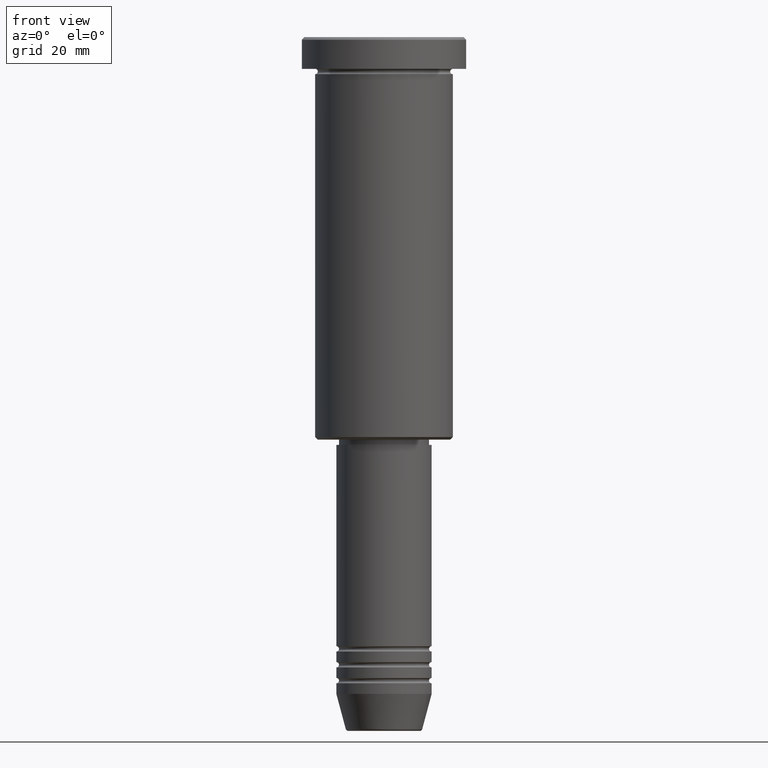
[diagram: clean part render]
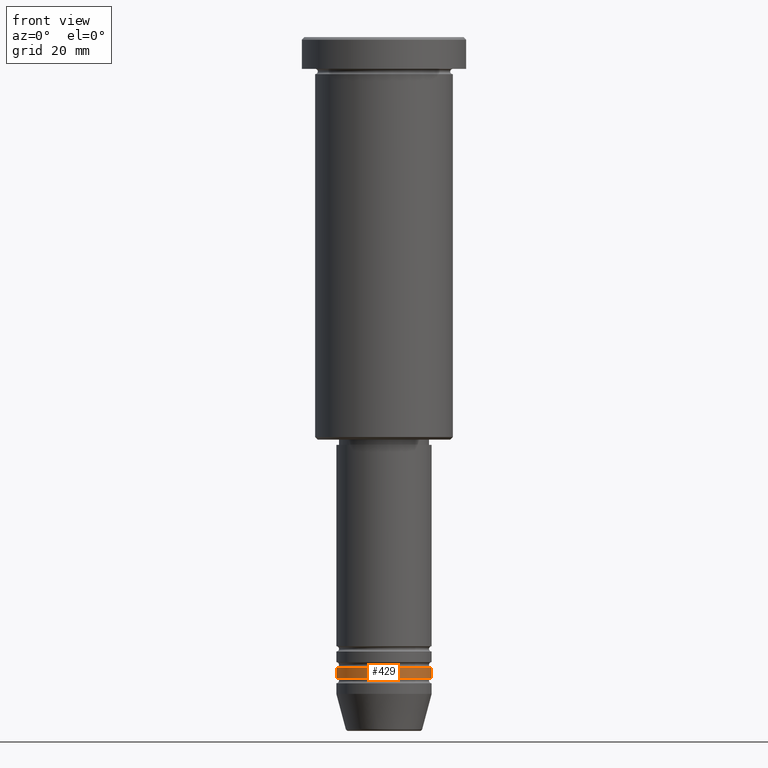
[diagram: same view with one face highlighted and labeled with its STEP entity id]
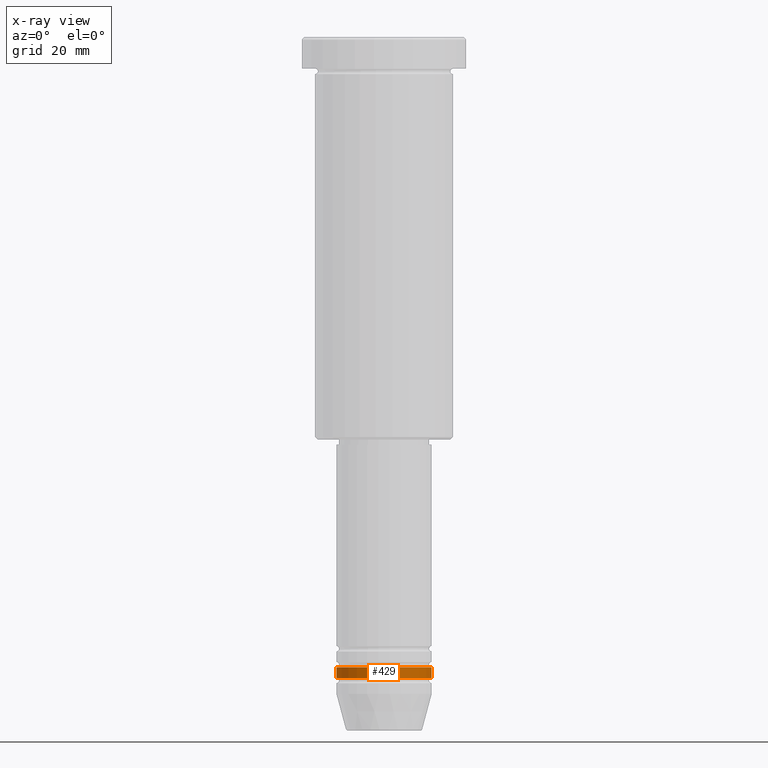
[diagram: x-ray of the same camera — body ghosted, the highlighted face saturated]
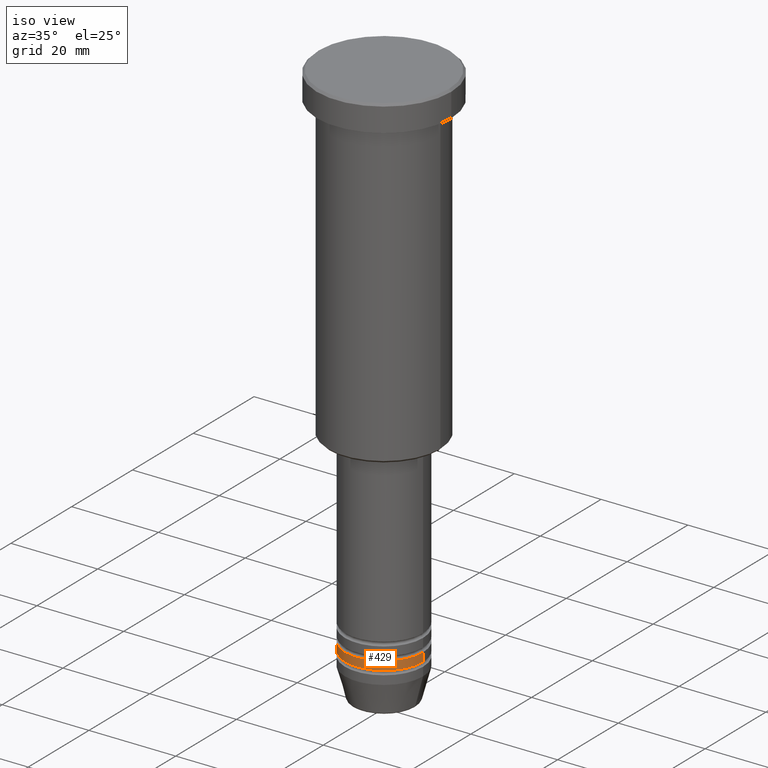
[diagram: same view with one face highlighted and labeled with its STEP entity id]
A machine part, front view. The second image highlights one B-rep face of the part: STEP entity #429.
The next image is the same camera in x-ray: the body ghosted, the highlighted face saturated — about 0% of this face is hidden behind the body in this view.
A second angle (iso view) of the same face is appended — the face is thin or edge-on in the first view.
In plain terms, the highlighted cylindrical surface (partial cylindrical patch) has radius 9 mm, axis along (-0, -0, 1).
Its self-contained STEP definition (entity closure, byte-faithful):
#27 = DIRECTION ( 'NONE',  ( 1.000000000000000000, 0.000000000000000000, 0.000000000000000000 ) ) ;
#30 = ORIENTED_EDGE ( 'NONE', *, *, #555, .T. ) ;
#63 = ORIENTED_EDGE ( 'NONE', *, *, #392, .F. ) ;
#68 = VECTOR ( 'NONE', #871, 1000.000000000000000 ) ;
#88 = CIRCLE ( 'NONE', #108, 9.000000000000000000 ) ;
#91 = FACE_OUTER_BOUND ( 'NONE', #736, .T. ) ;
#107 = DIRECTION ( 'NONE',  ( -0.000000000000000000, -0.000000000000000000, 1.000000000000000000 ) ) ;
#108 = AXIS2_PLACEMENT_3D ( 'NONE', #537, #993, #276 ) ;
#156 = VERTEX_POINT ( 'NONE', #679 ) ;
#218 = ORIENTED_EDGE ( 'NONE', *, *, #951, .T. ) ;
#236 = EDGE_CURVE ( 'NONE', #1121, #609, #533, .T. ) ;
#259 = CARTESIAN_POINT ( 'NONE',  ( -9.000000000000000000, 1.102182119232617714E-15, 0.000000000000000000 ) ) ;
#276 = DIRECTION ( 'NONE',  ( 1.000000000000000000, 0.000000000000000000, 0.000000000000000000 ) ) ;
#386 = AXIS2_PLACEMENT_3D ( 'NONE', #1096, #485, #27 ) ;
#392 = EDGE_CURVE ( 'NONE', #609, #156, #88, .T. ) ;
#429 = ADVANCED_FACE ( 'NONE', ( #91 ), #810, .T. ) ;
#438 = VECTOR ( 'NONE', #107, 1000.000000000000000 ) ;
#447 = CARTESIAN_POINT ( 'NONE',  ( 0.000000000000000000, 0.000000000000000000, 0.000000000000000000 ) ) ;
#485 = DIRECTION ( 'NONE',  ( -0.000000000000000000, -0.000000000000000000, 1.000000000000000000 ) ) ;
#533 = LINE ( 'NONE', #259, #68 ) ;
#537 = CARTESIAN_POINT ( 'NONE',  ( 0.000000000000000000, 0.000000000000000000, -118.9999999999999858 ) ) ;
#555 = EDGE_CURVE ( 'NONE', #928, #156, #837, .T. ) ;
#564 = AXIS2_PLACEMENT_3D ( 'NONE', #447, #655, #818 ) ;
#609 = VERTEX_POINT ( 'NONE', #1143 ) ;
#618 = ORIENTED_EDGE ( 'NONE', *, *, #236, .F. ) ;
#655 = DIRECTION ( 'NONE',  ( -0.000000000000000000, -0.000000000000000000, 1.000000000000000000 ) ) ;
#679 = CARTESIAN_POINT ( 'NONE',  ( 9.000000000000000000, 0.000000000000000000, -118.9999999999999858 ) ) ;
#736 = EDGE_LOOP ( 'NONE', ( #618, #218, #30, #63 ) ) ;
#773 = CARTESIAN_POINT ( 'NONE',  ( 9.000000000000000000, 0.000000000000000000, 0.000000000000000000 ) ) ;
#775 = CARTESIAN_POINT ( 'NONE',  ( -9.000000000000000000, 1.102182119232617714E-15, -120.9999999999999716 ) ) ;
#810 = CYLINDRICAL_SURFACE ( 'NONE', #564, 9.000000000000000000 ) ;
#818 = DIRECTION ( 'NONE',  ( 1.000000000000000000, 0.000000000000000000, 0.000000000000000000 ) ) ;
#837 = LINE ( 'NONE', #773, #438 ) ;
#871 = DIRECTION ( 'NONE',  ( -0.000000000000000000, -0.000000000000000000, 1.000000000000000000 ) ) ;
#925 = CARTESIAN_POINT ( 'NONE',  ( 9.000000000000000000, 0.000000000000000000, -120.9999999999999716 ) ) ;
#928 = VERTEX_POINT ( 'NONE', #925 ) ;
#951 = EDGE_CURVE ( 'NONE', #1121, #928, #1126, .T. ) ;
#993 = DIRECTION ( 'NONE',  ( -0.000000000000000000, -0.000000000000000000, 1.000000000000000000 ) ) ;
#1096 = CARTESIAN_POINT ( 'NONE',  ( 0.000000000000000000, 0.000000000000000000, -120.9999999999999716 ) ) ;
#1121 = VERTEX_POINT ( 'NONE', #775 ) ;
#1126 = CIRCLE ( 'NONE', #386, 9.000000000000000000 ) ;
#1143 = CARTESIAN_POINT ( 'NONE',  ( -9.000000000000000000, 1.102182119232617714E-15, -118.9999999999999858 ) ) ;